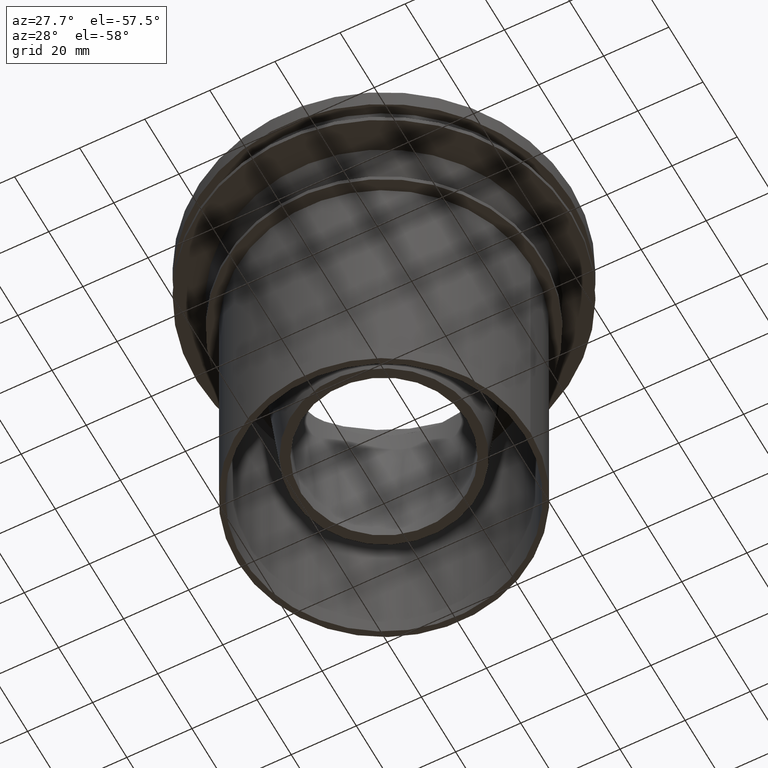
[diagram: clean part render]
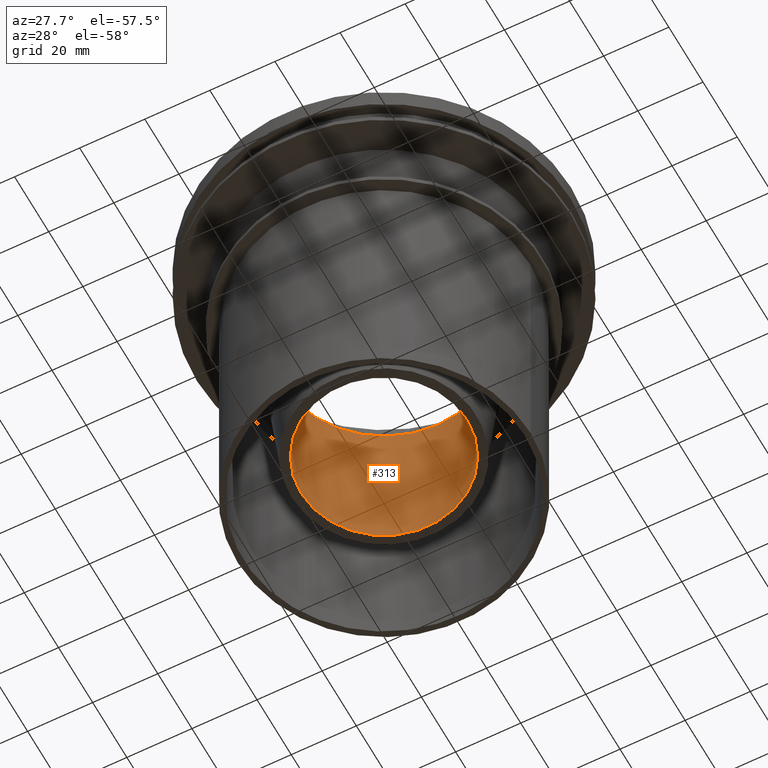
[diagram: same view with one face highlighted and labeled with its STEP entity id]
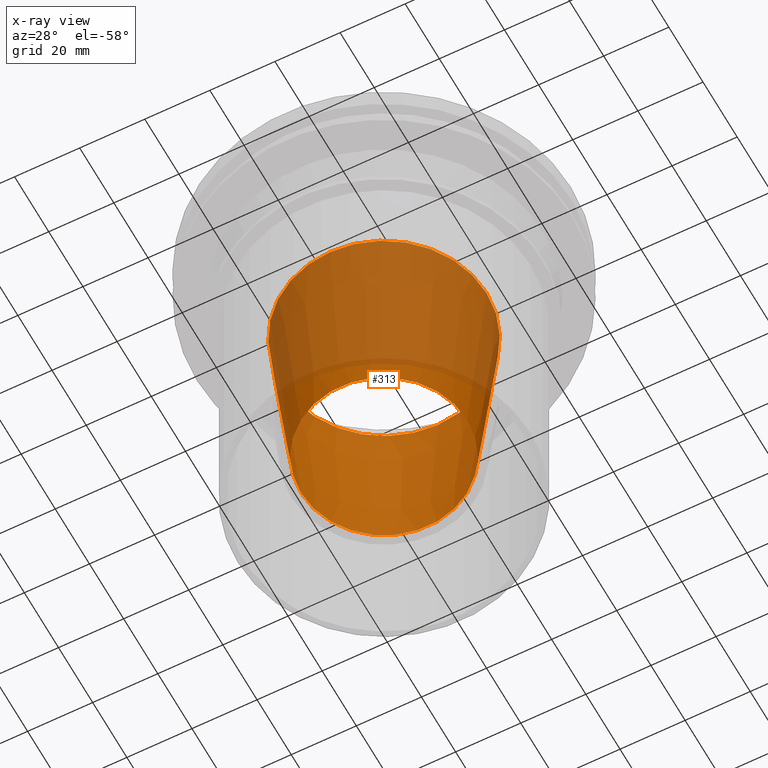
[diagram: x-ray of the same camera — body ghosted, the highlighted face saturated]
A machine part, auxiliary view. The second image highlights one B-rep face of the part: STEP entity #313.
The next image is the same camera in x-ray: the body ghosted, the highlighted face saturated — about 54% of this face is hidden behind the body in this view.
In plain terms, the highlighted conical surface has half-angle 5.752 deg.
Its self-contained STEP definition (entity closure, byte-faithful):
#20=CONICAL_SURFACE('',#381,31.499,0.10039079241774);
#73=ORIENTED_EDGE('',*,*,#115,.T.);
#74=ORIENTED_EDGE('',*,*,#114,.F.);
#114=EDGE_CURVE('',#141,#141,#168,.T.);
#115=EDGE_CURVE('',#142,#142,#169,.T.);
#141=VERTEX_POINT('',#565);
#142=VERTEX_POINT('',#568);
#168=CIRCLE('',#380,31.499);
#169=CIRCLE('',#382,25.478);
#208=EDGE_LOOP('',(#73));
#209=EDGE_LOOP('',(#74));
#262=FACE_BOUND('',#208,.T.);
#263=FACE_BOUND('',#209,.T.);
#313=ADVANCED_FACE('',(#262,#263),#20,.F.);
#380=AXIS2_PLACEMENT_3D('',#564,#465,#466);
#381=AXIS2_PLACEMENT_3D('',#566,#467,#468);
#382=AXIS2_PLACEMENT_3D('',#567,#469,#470);
#465=DIRECTION('',(0.,0.,-1.));
#466=DIRECTION('',(-1.,0.,0.));
#467=DIRECTION('',(0.,0.,1.));
#468=DIRECTION('',(1.,0.,0.));
#469=DIRECTION('',(0.,0.,-1.));
#470=DIRECTION('',(-1.,0.,0.));
#564=CARTESIAN_POINT('',(0.,0.,-34.449));
#565=CARTESIAN_POINT('',(-31.499,0.,-34.449));
#566=CARTESIAN_POINT('',(0.,0.,-34.449));
#567=CARTESIAN_POINT('',(0.,0.,-94.223));
#568=CARTESIAN_POINT('',(-25.478,0.,-94.223));